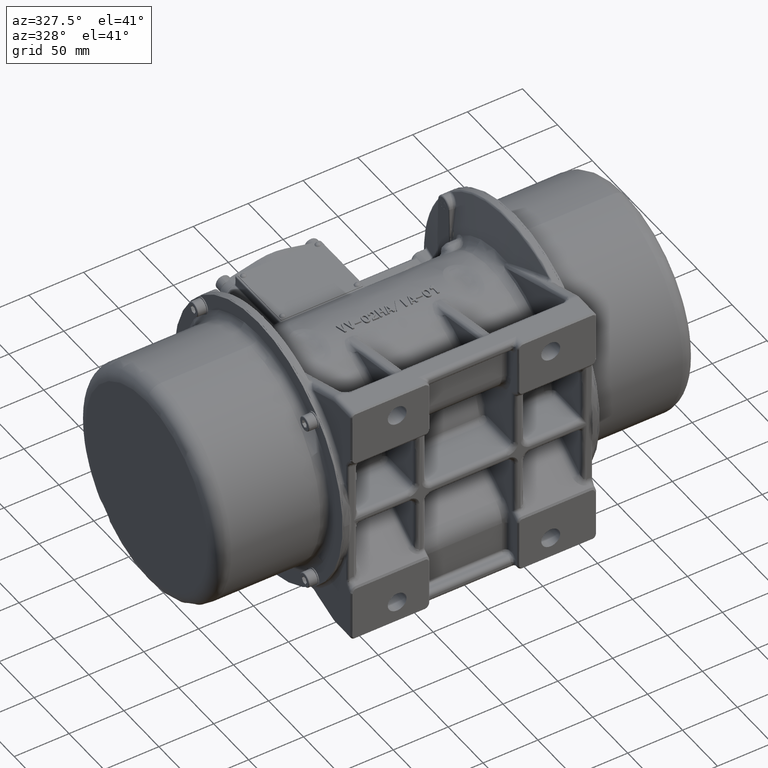
[diagram: clean part render]
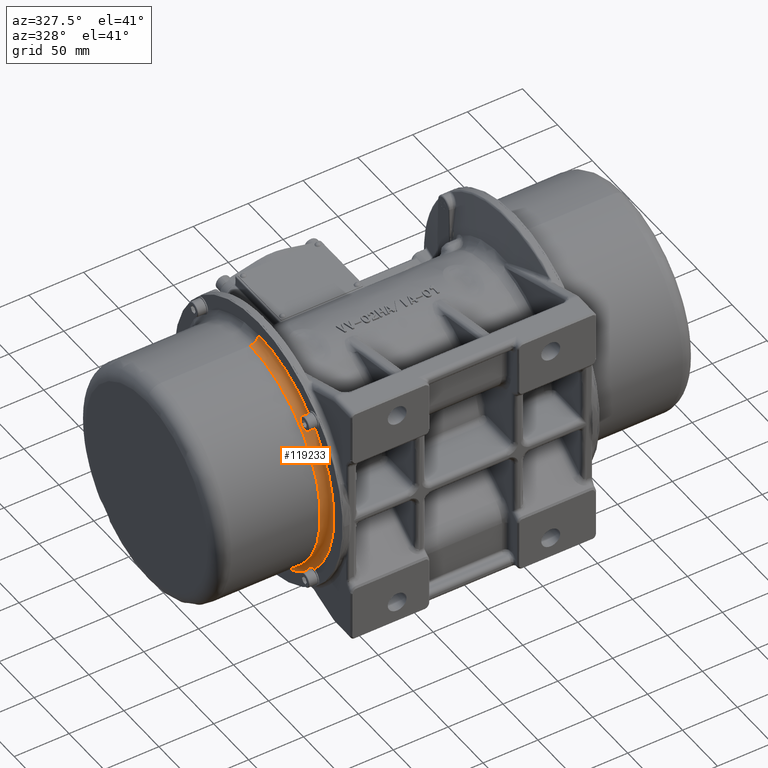
[diagram: same view with one face highlighted and labeled with its STEP entity id]
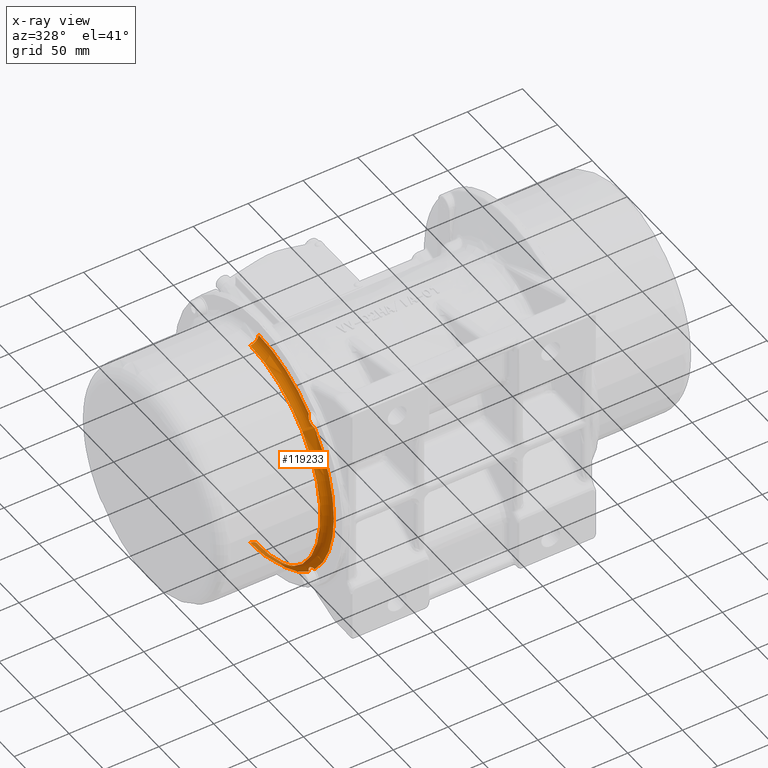
[diagram: x-ray of the same camera — body ghosted, the highlighted face saturated]
A machine part, auxiliary view. The second image highlights one B-rep face of the part: STEP entity #119233.
The next image is the same camera in x-ray: the body ghosted, the highlighted face saturated — about 4% of this face is hidden behind the body in this view.
In plain terms, the highlighted toroidal blend (fillet) surface has major radius 108 mm and minor (blend) radius 7.5 mm.
Its self-contained STEP definition (entity closure, byte-faithful):
#71 = EDGE_CURVE ( 'NONE', #173017, #173018, #114144, .T. ) ;
#7525 = CARTESIAN_POINT ( 'NONE',  ( -122.5579501043699900, -35.99057654739355200, 80.40977733538770200 ) ) ;
#7526 = CARTESIAN_POINT ( 'NONE',  ( -122.5881340922129500, -35.94107619995355700, 79.54951288351360000 ) ) ;
#7642 = CARTESIAN_POINT ( 'NONE',  ( -123.1622603880620100, -37.57734008144319700, 74.87333936954669900 ) ) ;
#7644 = CARTESIAN_POINT ( 'NONE',  ( -122.5994972363238100, -43.28279015149845300, 72.05118336773090000 ) ) ;
#7647 = CARTESIAN_POINT ( 'NONE',  ( -122.5881340922130000, -43.44107619995360600, 72.04951288351300300 ) ) ;
#7649 = CARTESIAN_POINT ( 'NONE',  ( -122.5579501043699900, -44.30134065185379900, 72.09901323092741200 ) ) ;
#7730 = CARTESIAN_POINT ( 'NONE',  ( -122.5579501043699900, -44.30134065185295400, -72.09901323092731200 ) ) ;
#7732 = CARTESIAN_POINT ( 'NONE',  ( -122.5881340922129300, -43.44107619997905100, -72.04951288348721100 ) ) ;
#7847 = CARTESIAN_POINT ( 'NONE',  ( -123.1622603880620100, -38.76490268601189400, -73.68577676497689300 ) ) ;
#7849 = CARTESIAN_POINT ( 'NONE',  ( -122.5994972363238100, -35.94274668419610200, -79.39122683503211400 ) ) ;
#7853 = CARTESIAN_POINT ( 'NONE',  ( -122.5881340922146000, -35.94107619995254800, -79.54951288348719600 ) ) ;
#7854 = CARTESIAN_POINT ( 'NONE',  ( -122.5579501043699900, -35.99057654739255000, -80.40977733538750300 ) ) ;
#8397 = CARTESIAN_POINT ( 'NONE',  ( -130.0579501043700100, 36.10843668353398800, -100.4999999999994500 ) ) ;
#8399 = CARTESIAN_POINT ( 'NONE',  ( -130.0579501043700100, 36.10843668353400200, 100.5000000000005500 ) ) ;
#8412 = CARTESIAN_POINT ( 'NONE',  ( -122.5579501043700100, 36.10843668353398800, -107.9999999999994500 ) ) ;
#8414 = CARTESIAN_POINT ( 'NONE',  ( -122.5579501043700100, 36.10843668353400200, 108.0000000000005500 ) ) ;
#8430 = CARTESIAN_POINT ( 'NONE',  ( -122.5579501043699900, -43.34114318653529800, 73.15575342014848600 ) ) ;
#8434 = CARTESIAN_POINT ( 'NONE',  ( -122.5579501043699900, -43.44107619995355700, 73.04707386336519900 ) ) ;
#9509 = CARTESIAN_POINT ( 'NONE',  ( -122.5579501043699900, -36.93863717983039400, -79.54951288348719600 ) ) ;
#9511 = CARTESIAN_POINT ( 'NONE',  ( -122.5579501043699900, -37.04731673661365200, -79.44957987006901600 ) ) ;
#9513 = CARTESIAN_POINT ( 'NONE',  ( -123.1589950630037900, -38.76970441558120200, -73.69179794340900000 ) ) ;
#9516 = CARTESIAN_POINT ( 'NONE',  ( -123.1620501005886000, -38.76810819213364600, -73.68322045914689500 ) ) ;
#9519 = CARTESIAN_POINT ( 'NONE',  ( -123.1589950630037900, -37.58336125987529600, 74.87814109911599300 ) ) ;
#9522 = CARTESIAN_POINT ( 'NONE',  ( -123.1620501005886000, -37.57478377561325500, 74.87654487566850000 ) ) ;
#31702 = CIRCLE ( 'NONE', #125071, 100.5000000000000000 ) ;
#31715 = CIRCLE ( 'NONE', #125084, 7.499999999999992900 ) ;
#31718 = CIRCLE ( 'NONE', #125085, 7.500000000000007100 ) ;
#38368 = B_SPLINE_CURVE_WITH_KNOTS ( 'NONE', 3,
 ( #74035, #74052, #74053, #74054, #74055, #74057, #74058, #74059, #74060, #74061, #74062, #74064 ),
 .UNSPECIFIED., .F., .F.,
 ( 4, 2, 2, 2, 2, 4 ),
 ( 0.009665777420352532700, 0.01048800812514853900, 0.01131023882994454600, 0.01295470023953660200, 0.01459916164912865800, 0.01624362305872071400 ),
 .UNSPECIFIED. ) ;
#38374 = B_SPLINE_CURVE_WITH_KNOTS ( 'NONE', 3,
 ( #74065, #74089, #74091, #74093 ),
 .UNSPECIFIED., .F., .F.,
 ( 4, 4 ),
 ( 0.01640274874846797300, 0.01726857530567735600 ),
 .UNSPECIFIED. ) ;
#43829 = CARTESIAN_POINT ( 'NONE',  ( -122.5579501043699900, -35.99057654739355200, 80.40977733538770200 ) ) ;
#43842 = CARTESIAN_POINT ( 'NONE',  ( -122.5579501043700100, -35.95748611366484200, 80.12319073465782500 ) ) ;
#43843 = CARTESIAN_POINT ( 'NONE',  ( -122.5690806642498500, -35.94107619995455800, 79.83518062571242500 ) ) ;
#43844 = CARTESIAN_POINT ( 'NONE',  ( -122.5881340922129500, -35.94107619995355700, 79.54951288351360000 ) ) ;
#61412 = EDGE_CURVE ( 'NONE', #173129, #173130, #82754, .T. ) ;
#61558 = EDGE_CURVE ( 'NONE', #173193, #173194, #82792, .T. ) ;
#61566 = EDGE_CURVE ( 'NONE', #173196, #173197, #82796, .T. ) ;
#62298 = EDGE_CURVE ( 'NONE', #173494, #173493, #31702, .T. ) ;
#62312 = EDGE_CURVE ( 'NONE', #173501, #173493, #31715, .T. ) ;
#62314 = EDGE_CURVE ( 'NONE', #173502, #173494, #31718, .T. ) ;
#62330 = EDGE_CURVE ( 'NONE', #173511, #173513, #96038, .T. ) ;
#62352 = EDGE_CURVE ( 'NONE', #173085, #173129, #96167, .T. ) ;
#62373 = EDGE_CURVE ( 'NONE', #173197, #173501, #96301, .T. ) ;
#62376 = EDGE_CURVE ( 'NONE', #173130, #173557, #82964, .T. ) ;
#62414 = EDGE_CURVE ( 'NONE', #173502, #173017, #96556, .T. ) ;
#62417 = EDGE_CURVE ( 'NONE', #173555, #173554, #96570, .T. ) ;
#62418 = EDGE_CURVE ( 'NONE', #173194, #173555, #82967, .T. ) ;
#62420 = EDGE_CURVE ( 'NONE', #173554, #173196, #82970, .T. ) ;
#62422 = EDGE_CURVE ( 'NONE', #173556, #173193, #82973, .T. ) ;
#62423 = EDGE_CURVE ( 'NONE', #173082, #173511, #82976, .T. ) ;
#62425 = EDGE_CURVE ( 'NONE', #173557, #173556, #82979, .T. ) ;
#62427 = EDGE_CURVE ( 'NONE', #173513, #173084, #82982, .T. ) ;
#62430 = EDGE_CURVE ( 'NONE', #173558, #173081, #82985, .T. ) ;
#62432 = EDGE_CURVE ( 'NONE', #173018, #173559, #82988, .T. ) ;
#62434 = EDGE_CURVE ( 'NONE', #173559, #173558, #82991, .T. ) ;
#70419 = ORIENTED_EDGE ( 'NONE', *, *, #62312, .F. ) ;
#70420 = ORIENTED_EDGE ( 'NONE', *, *, #62373, .F. ) ;
#70421 = ORIENTED_EDGE ( 'NONE', *, *, #61566, .F. ) ;
#70422 = ORIENTED_EDGE ( 'NONE', *, *, #62420, .F. ) ;
#70423 = ORIENTED_EDGE ( 'NONE', *, *, #62417, .F. ) ;
#70424 = ORIENTED_EDGE ( 'NONE', *, *, #62418, .F. ) ;
#70425 = ORIENTED_EDGE ( 'NONE', *, *, #61558, .F. ) ;
#70426 = ORIENTED_EDGE ( 'NONE', *, *, #62422, .F. ) ;
#70427 = ORIENTED_EDGE ( 'NONE', *, *, #62425, .F. ) ;
#70428 = ORIENTED_EDGE ( 'NONE', *, *, #62376, .F. ) ;
#70429 = ORIENTED_EDGE ( 'NONE', *, *, #61412, .F. ) ;
#70430 = ORIENTED_EDGE ( 'NONE', *, *, #62352, .F. ) ;
#70431 = ORIENTED_EDGE ( 'NONE', *, *, #181391, .F. ) ;
#70432 = ORIENTED_EDGE ( 'NONE', *, *, #62427, .F. ) ;
#70433 = ORIENTED_EDGE ( 'NONE', *, *, #62330, .F. ) ;
#70434 = ORIENTED_EDGE ( 'NONE', *, *, #62423, .F. ) ;
#70435 = ORIENTED_EDGE ( 'NONE', *, *, #181388, .F. ) ;
#70436 = ORIENTED_EDGE ( 'NONE', *, *, #62430, .F. ) ;
#70437 = ORIENTED_EDGE ( 'NONE', *, *, #62434, .F. ) ;
#70438 = ORIENTED_EDGE ( 'NONE', *, *, #62432, .F. ) ;
#70439 = ORIENTED_EDGE ( 'NONE', *, *, #71, .F. ) ;
#70440 = ORIENTED_EDGE ( 'NONE', *, *, #62414, .F. ) ;
#70441 = ORIENTED_EDGE ( 'NONE', *, *, #62314, .T. ) ;
#70442 = ORIENTED_EDGE ( 'NONE', *, *, #62298, .T. ) ;
#74035 = CARTESIAN_POINT ( 'NONE',  ( -123.1622603880620100, -37.57734008144319700, 74.87333936954669900 ) ) ;
#74052 = CARTESIAN_POINT ( 'NONE',  ( -123.1762629231681200, -37.74756883328550600, 74.65987926640696100 ) ) ;
#74053 = CARTESIAN_POINT ( 'NONE',  ( -123.1837684681434300, -37.93000440254176900, 74.45494499745252900 ) ) ;
#74054 = CARTESIAN_POINT ( 'NONE',  ( -123.1843847565025700, -38.32031117779303000, 74.06277433591078800 ) ) ;
#74055 = CARTESIAN_POINT ( 'NONE',  ( -123.1773809135663100, -38.52731658914025600, 73.87674481122917300 ) ) ;
#74057 = CARTESIAN_POINT ( 'NONE',  ( -123.1366093780310700, -39.16898989932813900, 73.36076477922767900 ) ) ;
#74058 = CARTESIAN_POINT ( 'NONE',  ( -123.0827732666690400, -39.62909479818927100, 73.06711224663627000 ) ) ;
#74059 = CARTESIAN_POINT ( 'NONE',  ( -122.9448834774311300, -40.61591198798675600, 72.58021109640236500 ) ) ;
#74060 = CARTESIAN_POINT ( 'NONE',  ( -122.8632148395142400, -41.12859395476011300, 72.39419729638085200 ) ) ;
#74061 = CARTESIAN_POINT ( 'NONE',  ( -122.7117343222657100, -42.18568834854605900, 72.13532940666657100 ) ) ;
#74062 = CARTESIAN_POINT ( 'NONE',  ( -122.6413659253941800, -42.73741589628058100, 72.06269595004759800 ) ) ;
#74064 = CARTESIAN_POINT ( 'NONE',  ( -122.5994972363238100, -43.28279015149845300, 72.05118336773090000 ) ) ;
#74065 = CARTESIAN_POINT ( 'NONE',  ( -122.5881340922130000, -43.44107619995360600, 72.04951288351300300 ) ) ;
#74089 = CARTESIAN_POINT ( 'NONE',  ( -122.5689899477446800, -43.72810405328969100, 72.04951288348743800 ) ) ;
#74091 = CARTESIAN_POINT ( 'NONE',  ( -122.5579501043700100, -44.01482338240855800, 72.06593080246575800 ) ) ;
#74093 = CARTESIAN_POINT ( 'NONE',  ( -122.5579501043699900, -44.30134065185379900, 72.09901323092741200 ) ) ;
#82754 = B_SPLINE_CURVE_WITH_KNOTS ( 'NONE', 3,
 ( #90980, #90986, #90987, #90988 ),
 .UNSPECIFIED., .F., .F.,
 ( 4, 4 ),
 ( 0.003749134168802079800, 0.004604627119183015900 ),
 .UNSPECIFIED. ) ;
#82792 = B_SPLINE_CURVE_WITH_KNOTS ( 'NONE', 3,
 ( #91269, #91274, #91275, #91276, #91277, #91278, #91279, #91280, #91281, #91282, #91283, #91284 ),
 .UNSPECIFIED., .F., .F.,
 ( 4, 2, 2, 2, 2, 4 ),
 ( 0.009665777420353023600, 0.01048800812514903900, 0.01131023882994505400, 0.01295470023953711900, 0.01459916164912918400, 0.01624362305872124900 ),
 .UNSPECIFIED. ) ;
#82796 = B_SPLINE_CURVE_WITH_KNOTS ( 'NONE', 3,
 ( #91294, #91298, #91299, #91300 ),
 .UNSPECIFIED., .F., .F.,
 ( 4, 4 ),
 ( 0.01640274874846740400, 0.01726857530567792500 ),
 .UNSPECIFIED. ) ;
#82964 = B_SPLINE_CURVE_WITH_KNOTS ( 'NONE', 3,
 ( #94431, #94437, #94438, #94439, #94440, #94441, #94442, #94443, #94444, #94445, #94446, #94447 ),
 .UNSPECIFIED., .F., .F.,
 ( 4, 2, 2, 2, 2, 4 ),
 ( 0.004604627119183015900, 0.005868885748844584300, 0.007133144378506153600, 0.007765273693336944800, 0.008397403008167735100, 0.009661661637829336400 ),
 .UNSPECIFIED. ) ;
#82967 = B_SPLINE_CURVE_WITH_KNOTS ( 'NONE', 3,
 ( #94518, #94531, #94532, #94533 ),
 .UNSPECIFIED., .F., .F.,
 ( 4, 4 ),
 ( 1.675170450433850100E-006, 0.001108903633136517200 ),
 .UNSPECIFIED. ) ;
#82970 = B_SPLINE_CURVE_WITH_KNOTS ( 'NONE', 3,
 ( #94530, #94535, #94536, #94537, #94538 ),
 .UNSPECIFIED., .F., .F.,
 ( 4, 1, 4 ),
 ( 0.0009324812263950655400, 0.001429855495567515700, 0.001927229764739966200 ),
 .UNSPECIFIED. ) ;
#82973 = B_SPLINE_CURVE_WITH_KNOTS ( 'NONE', 3,
 ( #94524, #94540, #94541, #94542 ),
 .UNSPECIFIED., .F., .F.,
 ( 4, 4 ),
 ( 3.195041944847306600E-006, 1.156006087593077800E-005 ),
 .UNSPECIFIED. ) ;
#82976 = B_SPLINE_CURVE_WITH_KNOTS ( 'NONE', 3,
 ( #94534, #94544, #94545, #94546 ),
 .UNSPECIFIED., .F., .F.,
 ( 4, 4 ),
 ( 1.675170450489501000E-006, 0.001108903633136600900 ),
 .UNSPECIFIED. ) ;
#82979 = B_SPLINE_CURVE_WITH_KNOTS ( 'NONE', 3,
 ( #94539, #94548, #94549, #94550 ),
 .UNSPECIFIED., .F., .F.,
 ( 4, 4 ),
 ( 0.0000000000000000000, 9.244156002886115700E-006 ),
 .UNSPECIFIED. ) ;
#82982 = B_SPLINE_CURVE_WITH_KNOTS ( 'NONE', 3,
 ( #94543, #94552, #94553, #94554, #94555, #94556 ),
 .UNSPECIFIED., .F., .F.,
 ( 4, 2, 4 ),
 ( 0.05786377691240884900, 0.05835630487768207800, 0.05884883284295530000 ),
 .UNSPECIFIED. ) ;
#82985 = B_SPLINE_CURVE_WITH_KNOTS ( 'NONE', 3,
 ( #94547, #94561, #94562, #94563 ),
 .UNSPECIFIED., .F., .F.,
 ( 4, 4 ),
 ( 3.195041944847926200E-006, 1.156006087592639500E-005 ),
 .UNSPECIFIED. ) ;
#82988 = B_SPLINE_CURVE_WITH_KNOTS ( 'NONE', 3,
 ( #94551, #94564, #94565, #94566, #94567, #94568, #94569, #94570, #94571, #94572, #94573, #94574 ),
 .UNSPECIFIED., .F., .F.,
 ( 4, 2, 2, 2, 2, 4 ),
 ( 0.004604627119182856300, 0.005868885748844356200, 0.007133144378505856100, 0.007765273693336599600, 0.008397403008167343000, 0.009661661637828831600 ),
 .UNSPECIFIED. ) ;
#82991 = B_SPLINE_CURVE_WITH_KNOTS ( 'NONE', 3,
 ( #94560, #94576, #94577, #94578 ),
 .UNSPECIFIED., .F., .F.,
 ( 4, 4 ),
 ( 0.0000000000000000000, 9.244156002822627200E-006 ),
 .UNSPECIFIED. ) ;
#90980 = CARTESIAN_POINT ( 'NONE',  ( -122.5579501043699900, -44.30134065185295400, -72.09901323092731200 ) ) ;
#90986 = CARTESIAN_POINT ( 'NONE',  ( -122.5579501043700100, -44.01475405112316300, -72.06592279719851000 ) ) ;
#90987 = CARTESIAN_POINT ( 'NONE',  ( -122.5690806642498500, -43.72674394217781900, -72.04951288348821900 ) ) ;
#90988 = CARTESIAN_POINT ( 'NONE',  ( -122.5881340922129300, -43.44107619997905100, -72.04951288348721100 ) ) ;
#91269 = CARTESIAN_POINT ( 'NONE',  ( -123.1622603880620100, -38.76490268601189400, -73.68577676497689300 ) ) ;
#91274 = CARTESIAN_POINT ( 'NONE',  ( -123.1762629231681800, -38.55144258287218400, -73.85600551681919500 ) ) ;
#91275 = CARTESIAN_POINT ( 'NONE',  ( -123.1837684681434700, -38.34650831391770300, -74.03844108607542300 ) ) ;
#91276 = CARTESIAN_POINT ( 'NONE',  ( -123.1843847565026200, -37.95433765237599000, -74.42874786132672700 ) ) ;
#91277 = CARTESIAN_POINT ( 'NONE',  ( -123.1773809135663400, -37.76830812769436800, -74.63575327267395200 ) ) ;
#91278 = CARTESIAN_POINT ( 'NONE',  ( -123.1366093780311100, -37.25232809569288200, -75.27742658286182100 ) ) ;
#91279 = CARTESIAN_POINT ( 'NONE',  ( -123.0827732666690700, -36.95867556310148700, -75.73753148172293900 ) ) ;
#91280 = CARTESIAN_POINT ( 'NONE',  ( -122.9448834774311300, -36.47177441286756000, -76.72434867152044500 ) ) ;
#91281 = CARTESIAN_POINT ( 'NONE',  ( -122.8632148395142700, -36.28576061284606900, -77.23703063829378800 ) ) ;
#91282 = CARTESIAN_POINT ( 'NONE',  ( -122.7117343222657000, -36.02689272313175900, -78.29412503207972000 ) ) ;
#91283 = CARTESIAN_POINT ( 'NONE',  ( -122.6413659253941500, -35.95425926651280000, -78.84585257981420600 ) ) ;
#91284 = CARTESIAN_POINT ( 'NONE',  ( -122.5994972363238100, -35.94274668419610200, -79.39122683503211400 ) ) ;
#91294 = CARTESIAN_POINT ( 'NONE',  ( -122.5881340922146000, -35.94107619995254800, -79.54951288348719600 ) ) ;
#91298 = CARTESIAN_POINT ( 'NONE',  ( -122.5689899477447100, -35.94107619995260400, -79.83654073682261300 ) ) ;
#91299 = CARTESIAN_POINT ( 'NONE',  ( -122.5579501043700100, -35.95749411893092400, -80.12326006594187800 ) ) ;
#91300 = CARTESIAN_POINT ( 'NONE',  ( -122.5579501043699900, -35.99057654739255000, -80.40977733538750300 ) ) ;
#94215 = CARTESIAN_POINT ( 'NONE',  ( -130.0579501043700100, 36.10843668353400200, 5.551115123125780700E-013 ) ) ;
#94217 = DIRECTION ( 'NONE',  ( 1.000000000000000000, -6.617445194922528500E-024, 3.202887553410824600E-031 ) ) ;
#94219 = DIRECTION ( 'NONE',  ( 0.0000000000000000000, 0.0000000000000000000, 1.000000000000000000 ) ) ;
#94259 = CARTESIAN_POINT ( 'NONE',  ( -130.0579501043700100, 36.10843668353398800, -107.9999999999994500 ) ) ;
#94263 = CARTESIAN_POINT ( 'NONE',  ( -130.0579501043700100, 36.10843668353400200, 108.0000000000005500 ) ) ;
#94264 = DIRECTION ( 'NONE',  ( -6.617445194922528500E-024, -1.000000000000000000, 1.224646780290674600E-016 ) ) ;
#94265 = DIRECTION ( 'NONE',  ( 0.0000000000000000000, 0.0000000000000000000, -1.000000000000000000 ) ) ;
#94270 = DIRECTION ( 'NONE',  ( 6.617445194922528500E-024, 1.000000000000000000, 1.885667856834235200E-024 ) ) ;
#94271 = DIRECTION ( 'NONE',  ( -1.000000000000000000, 0.0000000000000000000, 0.0000000000000000000 ) ) ;
#94342 = CARTESIAN_POINT ( 'NONE',  ( -122.5579501043699900, 36.10843668353400200, 5.551115123125780700E-013 ) ) ;
#94343 = DIRECTION ( 'NONE',  ( 1.000000000000000000, -6.617445194922528500E-024, 3.202887553410824600E-031 ) ) ;
#94344 = DIRECTION ( 'NONE',  ( 0.0000000000000000000, 0.0000000000000000000, 1.000000000000000000 ) ) ;
#94385 = CARTESIAN_POINT ( 'NONE',  ( -122.5579501043699900, 36.10843668353400200, 5.551115123125780700E-013 ) ) ;
#94386 = DIRECTION ( 'NONE',  ( 1.000000000000000000, -6.617445194922528500E-024, 3.202887553410824600E-031 ) ) ;
#94387 = DIRECTION ( 'NONE',  ( 0.0000000000000000000, 0.0000000000000000000, 1.000000000000000000 ) ) ;
#94428 = CARTESIAN_POINT ( 'NONE',  ( -122.5579501043699900, 36.10843668353400200, 5.551115123125780700E-013 ) ) ;
#94429 = DIRECTION ( 'NONE',  ( 1.000000000000000000, -6.617445194922528500E-024, 3.202887553410824600E-031 ) ) ;
#94430 = DIRECTION ( 'NONE',  ( 0.0000000000000000000, 0.0000000000000000000, 1.000000000000000000 ) ) ;
#94431 = CARTESIAN_POINT ( 'NONE',  ( -122.5881340922129300, -43.44107619997905100, -72.04951288348721100 ) ) ;
#94437 = CARTESIAN_POINT ( 'NONE',  ( -122.6162914963344300, -43.01891268813489700, -72.04951288348576100 ) ) ;
#94438 = CARTESIAN_POINT ( 'NONE',  ( -122.6618844439667700, -42.59817656289195000, -72.08503217789582600 ) ) ;
#94439 = CARTESIAN_POINT ( 'NONE',  ( -122.7696434995588400, -41.76414552945654900, -72.22715974199968500 ) ) ;
#94440 = CARTESIAN_POINT ( 'NONE',  ( -122.8306077964150100, -41.35914375910606100, -72.33215457605530200 ) ) ;
#94441 = CARTESIAN_POINT ( 'NONE',  ( -122.9196873654293000, -40.76734504804086600, -72.53917497195803300 ) ) ;
#94442 = CARTESIAN_POINT ( 'NONE',  ( -122.9490091084155200, -40.57271751168607200, -72.61649219638954400 ) ) ;
#94443 = CARTESIAN_POINT ( 'NONE',  ( -123.0049087148044400, -40.18859192421051300, -72.78818139861466800 ) ) ;
#94444 = CARTESIAN_POINT ( 'NONE',  ( -123.0315735746246400, -39.99833838996553200, -72.88303065042154600 ) ) ;
#94445 = CARTESIAN_POINT ( 'NONE',  ( -123.1033334038231300, -39.44486387027120600, -73.18885230580494300 ) ) ;
#94446 = CARTESIAN_POINT ( 'NONE',  ( -123.1404200540483100, -39.09645595098903200, -73.42166680893929300 ) ) ;
#94447 = CARTESIAN_POINT ( 'NONE',  ( -123.1620501005886000, -38.76810819213364600, -73.68322045914689500 ) ) ;
#94518 = CARTESIAN_POINT ( 'NONE',  ( -122.5994972363238100, -35.94274668419610200, -79.39122683503211400 ) ) ;
#94521 = CARTESIAN_POINT ( 'NONE',  ( -122.5579501043699900, 36.10843668353400200, 5.551115123125780700E-013 ) ) ;
#94522 = DIRECTION ( 'NONE',  ( 1.000000000000000000, -6.617445194922528500E-024, 3.202887553410824600E-031 ) ) ;
#94523 = DIRECTION ( 'NONE',  ( 0.0000000000000000000, 0.0000000000000000000, 1.000000000000000000 ) ) ;
#94524 = CARTESIAN_POINT ( 'NONE',  ( -123.1589950630037900, -38.76970441558120200, -73.69179794340900000 ) ) ;
#94527 = CARTESIAN_POINT ( 'NONE',  ( -122.5579501043699900, 36.10843668353400200, 5.551115123125780700E-013 ) ) ;
#94528 = DIRECTION ( 'NONE',  ( 1.000000000000000000, -6.617445194922528500E-024, 3.202887553410824600E-031 ) ) ;
#94529 = DIRECTION ( 'NONE',  ( 0.0000000000000000000, 0.0000000000000000000, 1.000000000000000000 ) ) ;
#94530 = CARTESIAN_POINT ( 'NONE',  ( -122.5579501043699900, -36.93863717983039400, -79.54951288348719600 ) ) ;
#94531 = CARTESIAN_POINT ( 'NONE',  ( -122.5725839605589600, -36.31079092543075100, -79.40106131180633000 ) ) ;
#94532 = CARTESIAN_POINT ( 'NONE',  ( -122.5579501043699900, -36.67960652908359300, -79.41631797884058100 ) ) ;
#94533 = CARTESIAN_POINT ( 'NONE',  ( -122.5579501043699900, -37.04731673661365200, -79.44957987006901600 ) ) ;
#94534 = CARTESIAN_POINT ( 'NONE',  ( -122.5994972363238100, -43.28279015149845300, 72.05118336773090000 ) ) ;
#94535 = CARTESIAN_POINT ( 'NONE',  ( -122.5579501043700200, -36.77181524515367500, -79.54951288348718200 ) ) ;
#94536 = CARTESIAN_POINT ( 'NONE',  ( -122.5630397661553100, -36.43873973534040500, -79.54951288348719600 ) ) ;
#94537 = CARTESIAN_POINT ( 'NONE',  ( -122.5781239849835100, -36.10678031183803700, -79.54951288348721100 ) ) ;
#94538 = CARTESIAN_POINT ( 'NONE',  ( -122.5881340922146000, -35.94107619995254800, -79.54951288348719600 ) ) ;
#94539 = CARTESIAN_POINT ( 'NONE',  ( -123.1620501005886000, -38.76810819213364600, -73.68322045914689500 ) ) ;
#94540 = CARTESIAN_POINT ( 'NONE',  ( -123.1600820893381200, -38.76810346510301700, -73.68979041500676900 ) ) ;
#94541 = CARTESIAN_POINT ( 'NONE',  ( -123.1611705310167900, -38.76650288857795300, -73.68778335552696000 ) ) ;
#94542 = CARTESIAN_POINT ( 'NONE',  ( -123.1622603880620100, -38.76490268601189400, -73.68577676497689300 ) ) ;
#94543 = CARTESIAN_POINT ( 'NONE',  ( -122.5579501043699900, -43.44107619995355700, 73.04707386336519900 ) ) ;
#94544 = CARTESIAN_POINT ( 'NONE',  ( -122.5725839605590600, -43.29262462827267700, 72.41922760896559900 ) ) ;
#94545 = CARTESIAN_POINT ( 'NONE',  ( -122.5579501043699900, -43.30788129530689900, 72.78804321261841900 ) ) ;
#94546 = CARTESIAN_POINT ( 'NONE',  ( -122.5579501043699900, -43.34114318653529800, 73.15575342014848600 ) ) ;
#94547 = CARTESIAN_POINT ( 'NONE',  ( -123.1589950630037900, -37.58336125987529600, 74.87814109911599300 ) ) ;
#94548 = CARTESIAN_POINT ( 'NONE',  ( -123.1610302965129800, -38.76864094334035800, -73.68607897473674500 ) ) ;
#94549 = CARTESIAN_POINT ( 'NONE',  ( -123.1600119492209600, -38.76917302556069700, -73.68893813526055700 ) ) ;
#94550 = CARTESIAN_POINT ( 'NONE',  ( -123.1589950630037900, -38.76970441558120200, -73.69179794340900000 ) ) ;
#94551 = CARTESIAN_POINT ( 'NONE',  ( -122.5881340922129500, -35.94107619995355700, 79.54951288351360000 ) ) ;
#94552 = CARTESIAN_POINT ( 'NONE',  ( -122.5579501043700100, -43.44107619995361300, 72.88089110260500500 ) ) ;
#94553 = CARTESIAN_POINT ( 'NONE',  ( -122.5604756142656000, -43.44107619995359900, 72.71461499715704200 ) ) ;
#94554 = CARTESIAN_POINT ( 'NONE',  ( -122.5705533010293200, -43.44107619995359900, 72.38187699698329400 ) ) ;
#94555 = CARTESIAN_POINT ( 'NONE',  ( -122.5781173390883200, -43.44107619995360600, 72.21532700939856400 ) ) ;
#94556 = CARTESIAN_POINT ( 'NONE',  ( -122.5881340922130000, -43.44107619995360600, 72.04951288351300300 ) ) ;
#94560 = CARTESIAN_POINT ( 'NONE',  ( -123.1620501005886000, -37.57478377561325500, 74.87654487566850000 ) ) ;
#94561 = CARTESIAN_POINT ( 'NONE',  ( -123.1600820893381200, -37.58135373147307200, 74.87654014863780100 ) ) ;
#94562 = CARTESIAN_POINT ( 'NONE',  ( -123.1611705310167900, -37.57934667199325700, 74.87493957211275100 ) ) ;
#94563 = CARTESIAN_POINT ( 'NONE',  ( -123.1622603880620100, -37.57734008144319700, 74.87333936954669900 ) ) ;
#94564 = CARTESIAN_POINT ( 'NONE',  ( -122.6162914963344400, -35.94107619995208600, 79.12734937166945300 ) ) ;
#94565 = CARTESIAN_POINT ( 'NONE',  ( -122.6618844439668000, -35.97659549436220100, 78.70661324642658500 ) ) ;
#94566 = CARTESIAN_POINT ( 'NONE',  ( -122.7696434995588400, -36.11872305846604500, 77.87258221299123300 ) ) ;
#94567 = CARTESIAN_POINT ( 'NONE',  ( -122.8306077964149700, -36.22371789252166300, 77.46758044264069600 ) ) ;
#94568 = CARTESIAN_POINT ( 'NONE',  ( -122.9196873654293000, -36.43073828842442900, 76.87578173157561400 ) ) ;
#94569 = CARTESIAN_POINT ( 'NONE',  ( -122.9490091084155100, -36.50805551285591100, 76.68115419522078500 ) ) ;
#94570 = CARTESIAN_POINT ( 'NONE',  ( -123.0049087148044700, -36.67974471508102100, 76.29702860774527600 ) ) ;
#94571 = CARTESIAN_POINT ( 'NONE',  ( -123.0315735746245900, -36.77459396688789200, 76.10677507350030200 ) ) ;
#94572 = CARTESIAN_POINT ( 'NONE',  ( -123.1033334038231400, -37.08041562227128900, 75.55330055380602500 ) ) ;
#94573 = CARTESIAN_POINT ( 'NONE',  ( -123.1404200540483100, -37.31323012540561700, 75.20489263452387300 ) ) ;
#94574 = CARTESIAN_POINT ( 'NONE',  ( -123.1620501005886000, -37.57478377561325500, 74.87654487566850000 ) ) ;
#94576 = CARTESIAN_POINT ( 'NONE',  ( -123.1610302965129800, -37.57764229120309800, 74.87707762687520600 ) ) ;
#94577 = CARTESIAN_POINT ( 'NONE',  ( -123.1600119492209400, -37.58050145172688200, 74.87760970909549500 ) ) ;
#94578 = CARTESIAN_POINT ( 'NONE',  ( -123.1589950630037900, -37.58336125987529600, 74.87814109911599300 ) ) ;
#96038 = CIRCLE ( 'NONE', #125091, 108.0000000000000000 ) ;
#96167 = CIRCLE ( 'NONE', #125092, 108.0000000000000000 ) ;
#96301 = CIRCLE ( 'NONE', #125093, 108.0000000000000000 ) ;
#96556 = CIRCLE ( 'NONE', #125088, 108.0000000000000000 ) ;
#96570 = CIRCLE ( 'NONE', #125094, 108.0000000000000000 ) ;
#114144 = B_SPLINE_CURVE_WITH_KNOTS ( 'NONE', 3,
 ( #43829, #43842, #43843, #43844 ),
 .UNSPECIFIED., .F., .F.,
 ( 4, 4 ),
 ( 0.003749134168801756700, 0.004604627119182856300 ),
 .UNSPECIFIED. ) ;
#119233 = ADVANCED_FACE ( 'NONE', ( #134018 ), #133969, .F. ) ;
#125071 = AXIS2_PLACEMENT_3D ( 'NONE', #94215, #94217, #94219 ) ;
#125084 = AXIS2_PLACEMENT_3D ( 'NONE', #94259, #94264, #94265 ) ;
#125085 = AXIS2_PLACEMENT_3D ( 'NONE', #94263, #94270, #94271 ) ;
#125088 = AXIS2_PLACEMENT_3D ( 'NONE', #94521, #94522, #94523 ) ;
#125091 = AXIS2_PLACEMENT_3D ( 'NONE', #94342, #94343, #94344 ) ;
#125092 = AXIS2_PLACEMENT_3D ( 'NONE', #94385, #94386, #94387 ) ;
#125093 = AXIS2_PLACEMENT_3D ( 'NONE', #94428, #94429, #94430 ) ;
#125094 = AXIS2_PLACEMENT_3D ( 'NONE', #94527, #94528, #94529 ) ;
#125181 = AXIS2_PLACEMENT_3D ( 'NONE', #139322, #139320, #139344 ) ;
#133969 = TOROIDAL_SURFACE ( 'NONE', #125181, 108.0000000000000000, 7.500000000000000000 ) ;
#134018 = FACE_OUTER_BOUND ( 'NONE', #186764, .T. ) ;
#139320 = DIRECTION ( 'NONE',  ( 1.000000000000000000, -6.617445194922528500E-024, 3.202887553410824600E-031 ) ) ;
#139322 = CARTESIAN_POINT ( 'NONE',  ( -130.0579501043700100, 36.10843668353400200, 5.551115123125780700E-013 ) ) ;
#139344 = DIRECTION ( 'NONE',  ( -3.202887553410824600E-031, 2.119493285019563600E-054, 1.000000000000000000 ) ) ;
#173017 = VERTEX_POINT ( 'NONE', #7525 ) ;
#173018 = VERTEX_POINT ( 'NONE', #7526 ) ;
#173081 = VERTEX_POINT ( 'NONE', #7642 ) ;
#173082 = VERTEX_POINT ( 'NONE', #7644 ) ;
#173084 = VERTEX_POINT ( 'NONE', #7647 ) ;
#173085 = VERTEX_POINT ( 'NONE', #7649 ) ;
#173129 = VERTEX_POINT ( 'NONE', #7730 ) ;
#173130 = VERTEX_POINT ( 'NONE', #7732 ) ;
#173193 = VERTEX_POINT ( 'NONE', #7847 ) ;
#173194 = VERTEX_POINT ( 'NONE', #7849 ) ;
#173196 = VERTEX_POINT ( 'NONE', #7853 ) ;
#173197 = VERTEX_POINT ( 'NONE', #7854 ) ;
#173493 = VERTEX_POINT ( 'NONE', #8397 ) ;
#173494 = VERTEX_POINT ( 'NONE', #8399 ) ;
#173501 = VERTEX_POINT ( 'NONE', #8412 ) ;
#173502 = VERTEX_POINT ( 'NONE', #8414 ) ;
#173511 = VERTEX_POINT ( 'NONE', #8430 ) ;
#173513 = VERTEX_POINT ( 'NONE', #8434 ) ;
#173554 = VERTEX_POINT ( 'NONE', #9509 ) ;
#173555 = VERTEX_POINT ( 'NONE', #9511 ) ;
#173556 = VERTEX_POINT ( 'NONE', #9513 ) ;
#173557 = VERTEX_POINT ( 'NONE', #9516 ) ;
#173558 = VERTEX_POINT ( 'NONE', #9519 ) ;
#173559 = VERTEX_POINT ( 'NONE', #9522 ) ;
#181388 = EDGE_CURVE ( 'NONE', #173081, #173082, #38368, .T. ) ;
#181391 = EDGE_CURVE ( 'NONE', #173084, #173085, #38374, .T. ) ;
#186764 = EDGE_LOOP ( 'NONE', ( #70419, #70420, #70421, #70422, #70423, #70424, #70425, #70426, #70427, #70428, #70429, #70430, #70431, #70432, #70433, #70434, #70435, #70436, #70437, #70438, #70439, #70440, #70441, #70442 ) ) ;